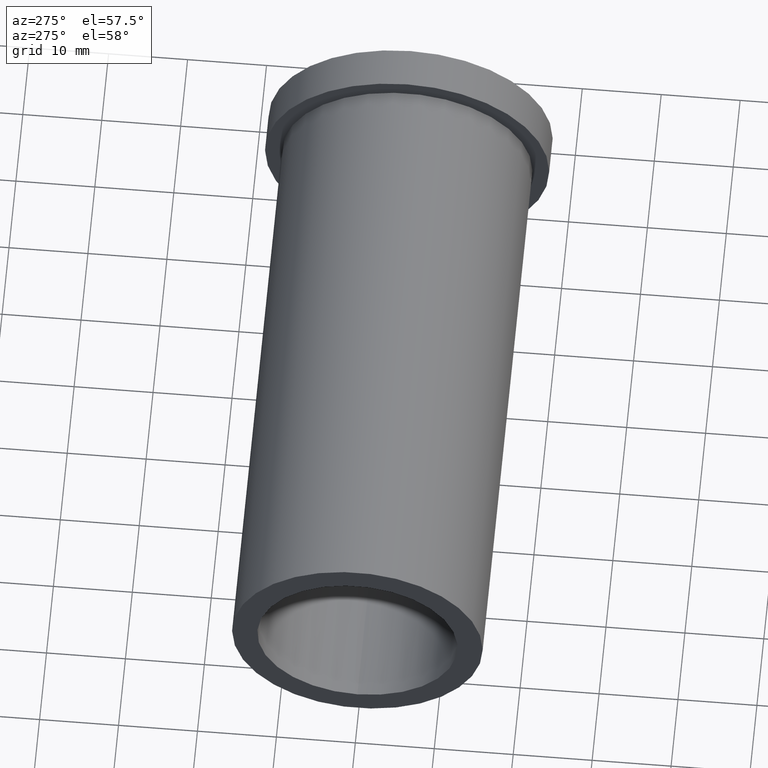
[diagram: clean part render]
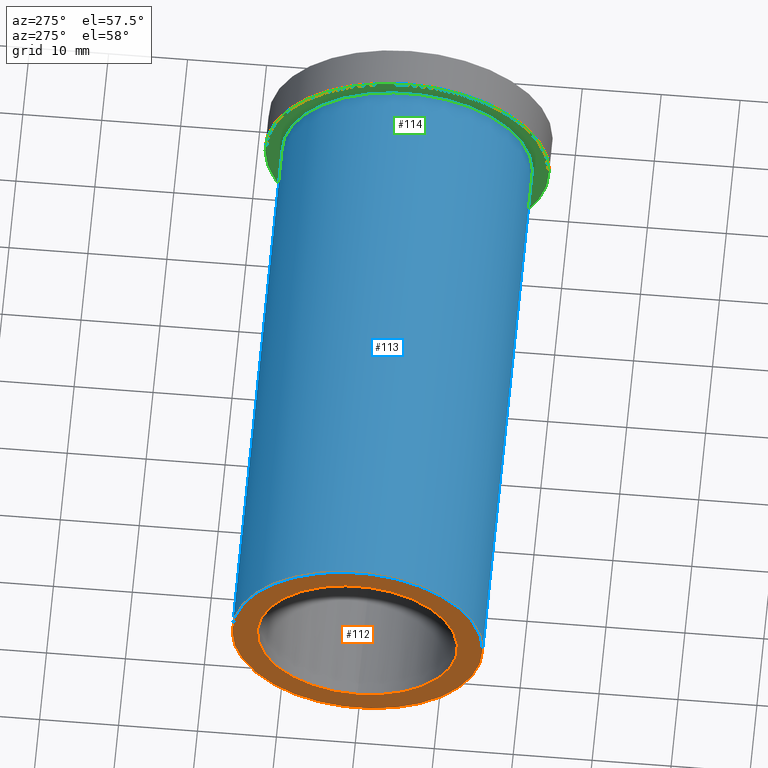
[diagram: same view with three faces highlighted in distinct colors, each labeled with its STEP entity id]
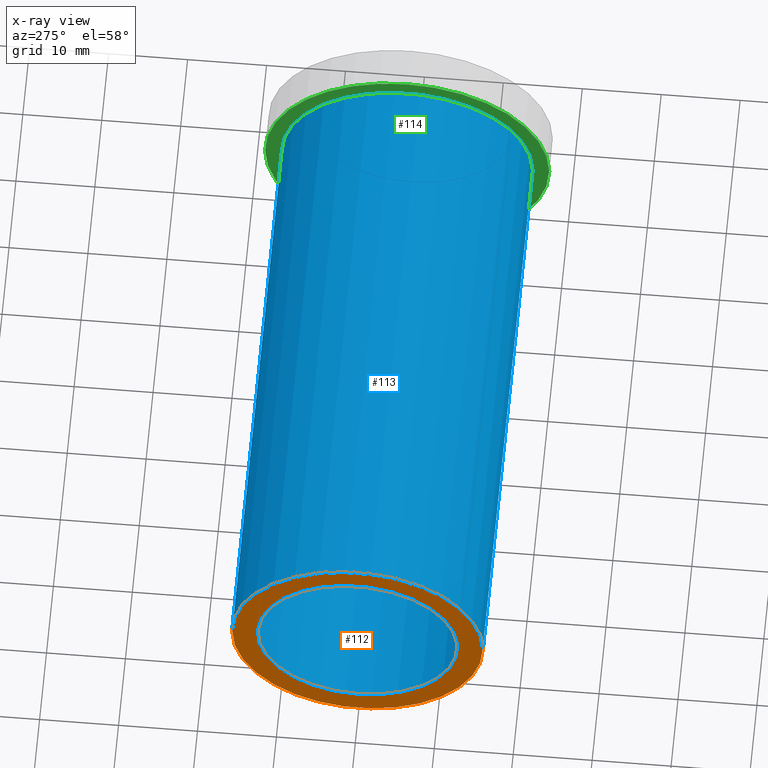
[diagram: x-ray of the same camera — body ghosted, the three highlighted faces saturated]
A machine part, auxiliary view with three faces highlighted in distinct colors.
The next image is the same camera in x-ray (body ghosted, the three faces saturated) — at least one of them is partly hidden behind the body in this view.
Their STEP definitions:

[orange] entity #112 — the highlighted planar face has unit normal (-1, 0, 0).
#17=FACE_BOUND('',#39,.T.);
#21=PLANE('',#149);
#28=FACE_OUTER_BOUND('',#38,.T.);
#38=EDGE_LOOP('',(#95));
#39=EDGE_LOOP('',(#96));
#54=CIRCLE('',#144,12.688101);
#57=CIRCLE('',#150,15.875);
#62=VERTEX_POINT('',#203);
#65=VERTEX_POINT('',#214);
#71=EDGE_CURVE('',#62,#62,#54,.T.);
#76=EDGE_CURVE('',#65,#65,#57,.T.);
#95=ORIENTED_EDGE('',*,*,#76,.F.);
#96=ORIENTED_EDGE('',*,*,#71,.T.);
#112=ADVANCED_FACE('',(#28,#17),#21,.T.);
#144=AXIS2_PLACEMENT_3D('',#204,#169,#170);
#149=AXIS2_PLACEMENT_3D('',#213,#181,#182);
#150=AXIS2_PLACEMENT_3D('',#215,#183,#184);
#169=DIRECTION('center_axis',(1.,0.,0.));
#170=DIRECTION('ref_axis',(0.,0.,1.));
#181=DIRECTION('center_axis',(-1.,0.,0.));
#182=DIRECTION('ref_axis',(0.,0.,1.));
#183=DIRECTION('center_axis',(1.,0.,0.));
#184=DIRECTION('ref_axis',(0.,0.,-1.));
#203=CARTESIAN_POINT('',(-77.,-1.55384422769083E-15,-12.688101));
#204=CARTESIAN_POINT('Origin',(-77.,0.,0.));
#213=CARTESIAN_POINT('Origin',(-77.,15.875,0.));
#214=CARTESIAN_POINT('',(-77.,-15.8750000000001,-1.94412679364643E-15));
#215=CARTESIAN_POINT('Origin',(-77.,0.,0.));

[blue] entity #113 — the highlighted cylindrical surface (bore or boss wall) has radius 15.875 mm, axis along (1, 0, 0).
#29=FACE_OUTER_BOUND('',#40,.T.);
#40=EDGE_LOOP('',(#97,#98,#99,#100));
#46=LINE('',#219,#50);
#50=VECTOR('',#189,15.8750000000001);
#57=CIRCLE('',#150,15.875);
#58=CIRCLE('',#152,15.8750000000001);
#65=VERTEX_POINT('',#214);
#66=VERTEX_POINT('',#217);
#76=EDGE_CURVE('',#65,#65,#57,.T.);
#77=EDGE_CURVE('',#66,#66,#58,.T.);
#78=EDGE_CURVE('',#66,#65,#46,.T.);
#97=ORIENTED_EDGE('',*,*,#77,.F.);
#98=ORIENTED_EDGE('',*,*,#78,.T.);
#99=ORIENTED_EDGE('',*,*,#76,.T.);
#100=ORIENTED_EDGE('',*,*,#78,.F.);
#106=CYLINDRICAL_SURFACE('',#151,15.8750000000001);
#113=ADVANCED_FACE('',(#29),#106,.T.);
#150=AXIS2_PLACEMENT_3D('',#215,#183,#184);
#151=AXIS2_PLACEMENT_3D('',#216,#185,#186);
#152=AXIS2_PLACEMENT_3D('',#218,#187,#188);
#183=DIRECTION('center_axis',(1.,0.,0.));
#184=DIRECTION('ref_axis',(0.,0.,-1.));
#185=DIRECTION('center_axis',(1.,0.,0.));
#186=DIRECTION('ref_axis',(0.,1.,0.));
#187=DIRECTION('center_axis',(1.,0.,0.));
#188=DIRECTION('ref_axis',(0.,0.,-1.));
#189=DIRECTION('',(-1.,0.,0.));
#214=CARTESIAN_POINT('',(-77.,-15.8750000000001,-1.94412679364643E-15));
#215=CARTESIAN_POINT('Origin',(-77.,0.,0.));
#216=CARTESIAN_POINT('Origin',(-41.,0.,0.));
#217=CARTESIAN_POINT('',(-5.,-15.8750000000001,-1.94412679364643E-15));
#218=CARTESIAN_POINT('Origin',(-5.,0.,0.));
#219=CARTESIAN_POINT('',(-41.,-15.8750000000001,-1.94412679364643E-15));

[green] entity #114 — the highlighted planar face has unit normal (-1, 0, 0).
#18=FACE_BOUND('',#42,.T.);
#22=PLANE('',#153);
#30=FACE_OUTER_BOUND('',#41,.T.);
#41=EDGE_LOOP('',(#101));
#42=EDGE_LOOP('',(#102));
#56=CIRCLE('',#147,18.);
#58=CIRCLE('',#152,15.8750000000001);
#64=VERTEX_POINT('',#209);
#66=VERTEX_POINT('',#217);
#75=EDGE_CURVE('',#64,#64,#56,.T.);
#77=EDGE_CURVE('',#66,#66,#58,.T.);
#101=ORIENTED_EDGE('',*,*,#75,.F.);
#102=ORIENTED_EDGE('',*,*,#77,.T.);
#114=ADVANCED_FACE('',(#30,#18),#22,.T.);
#147=AXIS2_PLACEMENT_3D('',#211,#177,#178);
#152=AXIS2_PLACEMENT_3D('',#218,#187,#188);
#153=AXIS2_PLACEMENT_3D('',#220,#190,#191);
#177=DIRECTION('center_axis',(1.,0.,0.));
#178=DIRECTION('ref_axis',(0.,0.,-1.));
#187=DIRECTION('center_axis',(1.,0.,0.));
#188=DIRECTION('ref_axis',(0.,0.,-1.));
#190=DIRECTION('center_axis',(-1.,0.,0.));
#191=DIRECTION('ref_axis',(0.,0.,1.));
#209=CARTESIAN_POINT('',(-4.99999999999999,-18.,-2.20436423846524E-15));
#211=CARTESIAN_POINT('Origin',(-4.99999999999999,0.,0.));
#217=CARTESIAN_POINT('',(-5.,-15.8750000000001,-1.94412679364643E-15));
#218=CARTESIAN_POINT('Origin',(-5.,0.,0.));
#220=CARTESIAN_POINT('Origin',(-4.99999999999999,18.,0.));